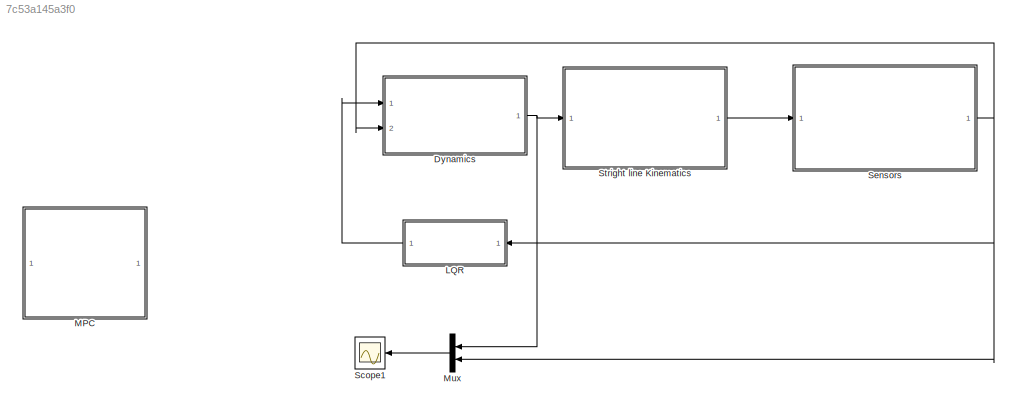
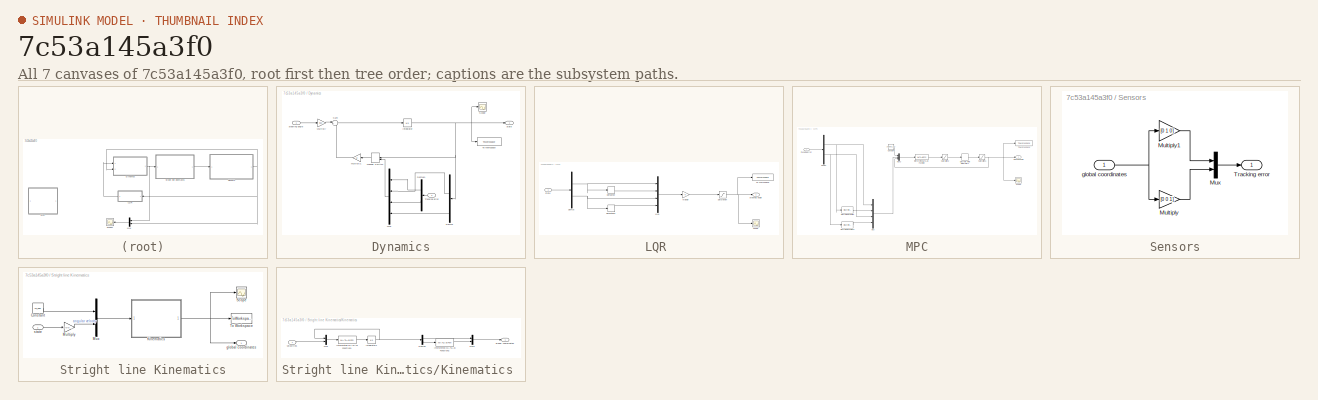
[diagram: thumbnail index - all 7 canvases of the model, root first then tree order]
MODEL slx_7c53a145a3f0
KIND model
CONFIG AbsTol = auto
CONFIG EnableMultiTasking = off
CONFIG FixedStep = auto
CONFIG MaxStep = auto
CONFIG MinStep = auto
CONFIG RelTol = 1e-3
CONFIG SampleTimeConstraint = Unconstrained
CONFIG SolverName = VariableStepAuto
CONFIG StartTime = 0.0
CONFIG StopTime = 15
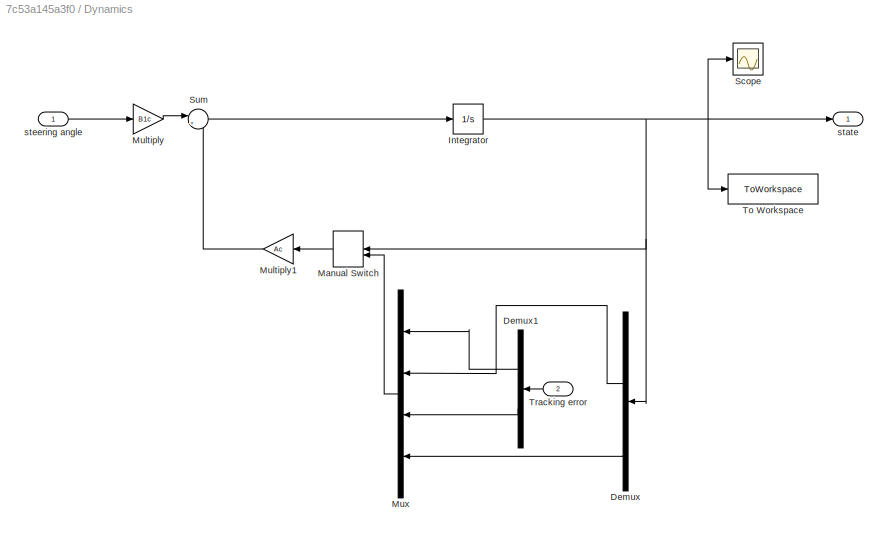
BLOCK [SubSystem] Dynamics
  Ports = [2, 1]
  RequestExecContextInheritance = off
BLOCK [Demux] Dynamics/Demux
  NameLocation = top
  Ports = [1, 4]
BLOCK [Demux] Dynamics/Demux1
  NameLocation = top
  Outputs = 2
  Ports = [1, 2]
BLOCK [Integrator] Dynamics/Integrator
  InitialCondition = [1 0 0 0]
  Ports = [1, 1]
BLOCK [ManualSwitch] Dynamics/Manual Switch
  CurrentSetting = 0
  NameLocation = top
BLOCK [Gain] Dynamics/Multiply
  Gain = B1c
  Multiplication = Matrix(K*u) (u vector)
BLOCK [Gain] Dynamics/Multiply1
  Gain = Ac
  Multiplication = Matrix(K*u) (u vector)
  NameLocation = top
BLOCK [Mux] Dynamics/Mux
  DisplayOption = bar
  NameLocation = top
  Ports = [4, 1]
BLOCK [Scope] Dynamics/Scope
  Floating = off
  NumInputPorts = 1
  Ports = [1]
  ScopeSpecificationString = Simulink.scopes.TimeScopeBlockCfg('CurrentConfiguration', extmgr.ConfigurationSet(extmgr.Configuration('Core','General UI',true),extmgr.Configuration('Core','Source UI',true),extmgr.Configuration('Sources','WiredSimulink',true,'DataLoggingVariableName','ScopeData2'),extmgr.Configuration('Visuals','Time Domain',true,'SerializedDisplays',{struct('MinYLimReal','-0.3226','MaxYLimReal','1.14696','YLabe...<+1461ch>
BLOCK [Sum] Dynamics/Sum
  Inputs = |++
  Ports = [2, 1]
BLOCK [ToWorkspace] Dynamics/To Workspace
  FixptAsFi = on
  MaxDataPoints = inf
  Ports = [1]
  SampleTime = -1
  VariableName = simout
BLOCK [Inport] Dynamics/Tracking error
  NameLocation = top
  Port = 2
BLOCK [Outport] Dynamics/state
BLOCK [Inport] Dynamics/steering angle
BLOCK [SubSystem] LQR 
  NameLocation = top
  Ports = [1, 1]
  RequestExecContextInheritance = off
BLOCK [Demux] LQR /Demux
  Outputs = 2
  Ports = [1, 2]
BLOCK [Derivative] LQR /Derivative
BLOCK [Derivative] LQR /Derivative1
BLOCK [Gain] LQR /Multiply
  Gain = -K
  Multiplication = Matrix(K*u) (u vector)
BLOCK [Mux] LQR /Mux
  DisplayOption = bar
  Ports = [4, 1]
BLOCK [Saturate] LQR /Saturation
  LowerLimit = -0.3
  UpperLimit = 0.3
BLOCK [Scope] LQR /Scope
  Floating = off
  NumInputPorts = 1
  Ports = [1]
  ScopeSpecificationString = Simulink.scopes.TimeScopeBlockCfg('CurrentConfiguration', extmgr.ConfigurationSet(extmgr.Configuration('Core','General UI',true),extmgr.Configuration('Core','Source UI',true),extmgr.Configuration('Sources','WiredSimulink',true,'DataLoggingVariableName','ScopeData7'),extmgr.Configuration('Visuals','Time Domain',true,'SerializedDisplays',{struct('MinYLimReal','-0.375','MaxYLimReal','0.375','YLabelRe...<+1412ch>
BLOCK [ToWorkspace] LQR /To Workspace
  FixptAsFi = on
  MaxDataPoints = inf
  Ports = [1]
  SampleTime = -1
  SaveFormat = Timeseries
  VariableName = q1
BLOCK [Inport] LQR /state
BLOCK [Outport] LQR /steering angle
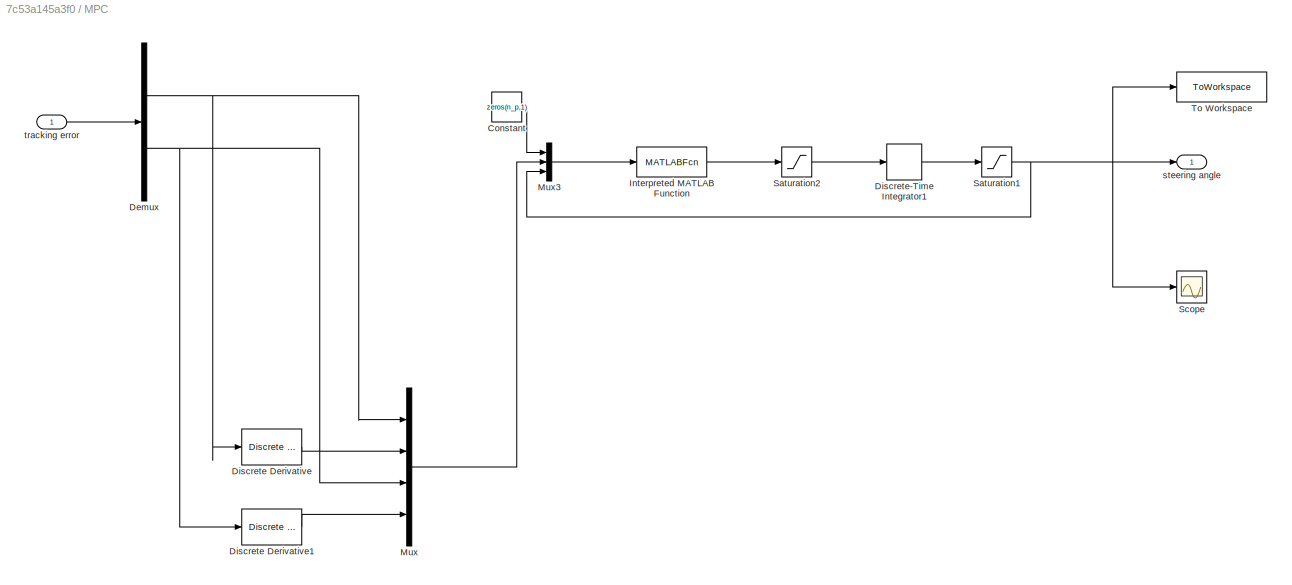
BLOCK [SubSystem] MPC
  Commented = on
  NameLocation = top
  Ports = [1, 1]
  RequestExecContextInheritance = off
BLOCK [Constant] MPC/Constant
  Value = zeros(n_p,1)
BLOCK [Demux] MPC/Demux
  Outputs = 2
  Ports = [1, 2]
BLOCK [Reference] MPC/Discrete Derivative  REF=simulink/Discrete/Discrete Derivative
  Ports = [1, 1]
  SourceBlock = simulink/Discrete/Discrete Derivative
  SourceProductBaseCode = SL
  SourceType = Discrete Derivative
BLOCK [Reference] MPC/Discrete Derivative1  REF=simulink/Discrete/Discrete Derivative
  Ports = [1, 1]
  SourceBlock = simulink/Discrete/Discrete Derivative
  SourceProductBaseCode = SL
  SourceType = Discrete Derivative
BLOCK [DiscreteIntegrator] MPC/Discrete-Time Integrator1
  ICPrevOutput = DiscIntNeverNeededParam
  ICPrevScaledInput = DiscIntNeverNeededParam
  InitialConditionSetting = Auto
  Ports = [1, 1]
  SampleTime = Ts
BLOCK [MATLABFcn] MPC/Interpreted MATLAB Function
  MATLABFcn = MPC_Control
  OutputDimensions = 1
  Ports = [1, 1]
BLOCK [Mux] MPC/Mux
  DisplayOption = bar
  Ports = [4, 1]
BLOCK [Mux] MPC/Mux3
  DisplayOption = bar
  Inputs = 3
  Ports = [3, 1]
BLOCK [Saturate] MPC/Saturation1
  LowerLimit = -0.2
  UpperLimit = 0.2
BLOCK [Saturate] MPC/Saturation2
  LowerLimit = -0.04
  UpperLimit = 0.04
BLOCK [Scope] MPC/Scope
  Floating = off
  NumInputPorts = 1
  Ports = [1]
  ScopeSpecificationString = Simulink.scopes.TimeScopeBlockCfg('CurrentConfiguration', extmgr.ConfigurationSet(extmgr.Configuration('Core','General UI',true),extmgr.Configuration('Core','Source UI',true),extmgr.Configuration('Sources','WiredSimulink',true,'DataLoggingVariableName','ScopeData7'),extmgr.Configuration('Visuals','Time Domain',true,'SerializedDisplays',{struct('MinYLimReal','-0.25','MaxYLimReal','0.25','YLabelReal...<+1407ch>
BLOCK [ToWorkspace] MPC/To Workspace
  FixptAsFi = on
  MaxDataPoints = inf
  Ports = [1]
  SampleTime = -1
  VariableName = q1
BLOCK [Outport] MPC/steering angle
BLOCK [Inport] MPC/tracking error
BLOCK [Mux] Mux
  DisplayOption = bar
  Inputs = 2
  NameLocation = top
  Ports = [2, 1]
BLOCK [Scope] Scope1
  Floating = off
  NameLocation = top
  NumInputPorts = 1
  Ports = [1]
  ScopeSpecificationString = Simulink.scopes.TimeScopeBlockCfg('CurrentConfiguration', extmgr.ConfigurationSet(extmgr.Configuration('Core','General UI',true),extmgr.Configuration('Core','Source UI',true),extmgr.Configuration('Sources','WiredSimulink',true,'DataLoggingVariableName','ScopeData1'),extmgr.Configuration('Visuals','Time Domain',true,'SerializedDisplays',{struct('MinYLimReal','-1.92714','MaxYLimReal','1.32524','YLab...<+1783ch>
BLOCK [SubSystem] Sensors
  Ports = [1, 1]
  RequestExecContextInheritance = off
BLOCK [Gain] Sensors/Multiply
  Gain = [0 0 1]
  Multiplication = Matrix(K*u) (u vector)
BLOCK [Gain] Sensors/Multiply1
  Gain = [0 1 0]
  Multiplication = Matrix(K*u) (u vector)
BLOCK [Mux] Sensors/Mux
  DisplayOption = bar
  Inputs = 2
  Ports = [2, 1]
BLOCK [Outport] Sensors/Tracking error
BLOCK [Inport] Sensors/global coordinates
BLOCK [SubSystem] Stright line Kinematics
  Ports = [1, 1]
  RequestExecContextInheritance = off
BLOCK [Constant] Stright line Kinematics/Constant
  Value = v0_ego
BLOCK [SubSystem] Stright line Kinematics/Kinematics 
  Ports = [1, 1]
  RequestExecContextInheritance = off
BLOCK [Demux] Stright line Kinematics/Kinematics /Demux
  Outputs = [2 1]
  Ports = [1, 2]
BLOCK [Integrator] Stright line Kinematics/Kinematics /Integrator1
  InitialCondition = [0; 1; 0]
  Ports = [1, 1]
BLOCK [MATLABFcn] Stright line Kinematics/Kinematics /Interpreted MATLAB Function1
  MATLABFcn = unicycle
  Ports = [1, 1]
BLOCK [MATLABFcn] Stright line Kinematics/Kinematics /Interpreted MATLAB Function2
  MATLABFcn = conv_angle
  Ports = [1, 1]
BLOCK [Mux] Stright line Kinematics/Kinematics /Mux
  DisplayOption = bar
  Inputs = [3 2]
  Ports = [2, 1]
BLOCK [Mux] Stright line Kinematics/Kinematics /Mux1
  DisplayOption = bar
  Inputs = [2 1]
  Ports = [2, 1]
BLOCK [Outport] Stright line Kinematics/Kinematics /global coordinates
  VectorParamsAs1DForOutWhenUnconnected = off
BLOCK [Inport] Stright line Kinematics/Kinematics /velocities
BLOCK [Gain] Stright line Kinematics/Multiply
  Gain = [0 0 0 1]
  Multiplication = Matrix(K*u) (u vector)
BLOCK [Mux] Stright line Kinematics/Mux
  DisplayOption = bar
  Inputs = 2
  Ports = [2, 1]
BLOCK [Scope] Stright line Kinematics/Scope
  Floating = off
  NumInputPorts = 1
  Ports = [1]
  ScopeSpecificationString = Simulink.scopes.TimeScopeBlockCfg('CurrentConfiguration', extmgr.ConfigurationSet(extmgr.Configuration('Core','General UI',true),extmgr.Configuration('Core','Source UI',true),extmgr.Configuration('Sources','WiredSimulink',true,'DataLoggingVariableName','ScopeData1'),extmgr.Configuration('Visuals','Time Domain',true,'SerializedDisplays',{struct('MinYLimReal','-25.21204','MaxYLimReal','44.08567','YL...<+1505ch>
BLOCK [ToWorkspace] Stright line Kinematics/To Workspace
  FixptAsFi = on
  MaxDataPoints = inf
  Ports = [1]
  SampleTime = -1
  VariableName = q
BLOCK [Outport] Stright line Kinematics/global coordinates
BLOCK [Inport] Stright line Kinematics/state
LINE Dynamics/Demux1:1 -> Dynamics/Mux:1
LINE Dynamics/Demux1:2 -> Dynamics/Mux:3
LINE Dynamics/Demux:2 -> Dynamics/Mux:2
LINE Dynamics/Demux:4 -> Dynamics/Mux:4
NET Dynamics/Integrator:1 -> Dynamics/Demux:1, Dynamics/Manual Switch:1, Dynamics/Scope:1, Dynamics/To Workspace:1, Dynamics/state:1
LINE Dynamics/Manual Switch:1 -> Dynamics/Multiply1:1
LINE Dynamics/Multiply1:1 -> Dynamics/Sum:2
LINE Dynamics/Multiply:1 -> Dynamics/Sum:1
LINE Dynamics/Mux:1 -> Dynamics/Manual Switch:2
LINE Dynamics/Sum:1 -> Dynamics/Integrator:1
LINE Dynamics/Tracking error:1 -> Dynamics/Demux1:1
LINE Dynamics/steering angle:1 -> Dynamics/Multiply:1
NET Dynamics:1 -> Mux:1, Stright line Kinematics:1
NET LQR /Demux:1 -> LQR /Derivative:1, LQR /Mux:1
NET LQR /Demux:2 -> LQR /Derivative1:1, LQR /Mux:3
LINE LQR /Derivative1:1 -> LQR /Mux:4
LINE LQR /Derivative:1 -> LQR /Mux:2
LINE LQR /Multiply:1 -> LQR /Saturation:1
LINE LQR /Mux:1 -> LQR /Multiply:1
NET LQR /Saturation:1 -> LQR /Scope:1, LQR /To Workspace:1, LQR /steering angle:1
LINE LQR /state:1 -> LQR /Demux:1
LINE LQR :1 -> Dynamics:1
LINE MPC/Constant:1 -> MPC/Mux3:1
NET MPC/Demux:1 -> MPC/Discrete Derivative:1, MPC/Mux:1
NET MPC/Demux:2 -> MPC/Discrete Derivative1:1, MPC/Mux:3
LINE MPC/Discrete Derivative1:1 -> MPC/Mux:4
LINE MPC/Discrete Derivative:1 -> MPC/Mux:2
LINE MPC/Discrete-Time Integrator1:1 -> MPC/Saturation1:1
LINE MPC/Interpreted MATLAB Function:1 -> MPC/Saturation2:1
LINE MPC/Mux3:1 -> MPC/Interpreted MATLAB Function:1
LINE MPC/Mux:1 -> MPC/Mux3:2
NET MPC/Saturation1:1 -> MPC/Mux3:3, MPC/Scope:1, MPC/To Workspace:1, MPC/steering angle:1
LINE MPC/Saturation2:1 -> MPC/Discrete-Time Integrator1:1
LINE MPC/tracking error:1 -> MPC/Demux:1
LINE Mux:1 -> Scope1:1
LINE Sensors/Multiply1:1 -> Sensors/Mux:1
LINE Sensors/Multiply:1 -> Sensors/Mux:2
LINE Sensors/Mux:1 -> Sensors/Tracking error:1
NET Sensors/global coordinates:1 -> Sensors/Multiply1:1, Sensors/Multiply:1
NET Sensors:1 -> Dynamics:2, LQR :1, Mux:2
LINE Stright line Kinematics/Constant:1 -> Stright line Kinematics/Mux:1
LINE Stright line Kinematics/Kinematics /Demux:1 -> Stright line Kinematics/Kinematics /Mux1:1
LINE Stright line Kinematics/Kinematics /Demux:2 -> Stright line Kinematics/Kinematics /Interpreted MATLAB Function2:1
NET Stright line Kinematics/Kinematics /Integrator1:1 -> Stright line Kinematics/Kinematics /Demux:1, Stright line Kinematics/Kinematics /Mux:1
LINE Stright line Kinematics/Kinematics /Interpreted MATLAB Function1:1 -> Stright line Kinematics/Kinematics /Integrator1:1
LINE Stright line Kinematics/Kinematics /Interpreted MATLAB Function2:1 -> Stright line Kinematics/Kinematics /Mux1:2
LINE Stright line Kinematics/Kinematics /Mux1:1 -> Stright line Kinematics/Kinematics /global coordinates:1
LINE Stright line Kinematics/Kinematics /Mux:1 -> Stright line Kinematics/Kinematics /Interpreted MATLAB Function1:1
LINE Stright line Kinematics/Kinematics /velocities:1 -> Stright line Kinematics/Kinematics /Mux:2
NET Stright line Kinematics/Kinematics :1 -> Stright line Kinematics/Scope:1, Stright line Kinematics/To Workspace:1, Stright line Kinematics/global coordinates:1
LINE Stright line Kinematics/Multiply:1 -> Stright line Kinematics/Mux:2
LINE Stright line Kinematics/Mux:1 -> Stright line Kinematics/Kinematics :1
LINE Stright line Kinematics/state:1 -> Stright line Kinematics/Multiply:1
LINE Stright line Kinematics:1 -> Sensors:1
note: NET lines group one-source signal fan-out (src -> all destinations, sorted); 1:1 wires keep LINE
